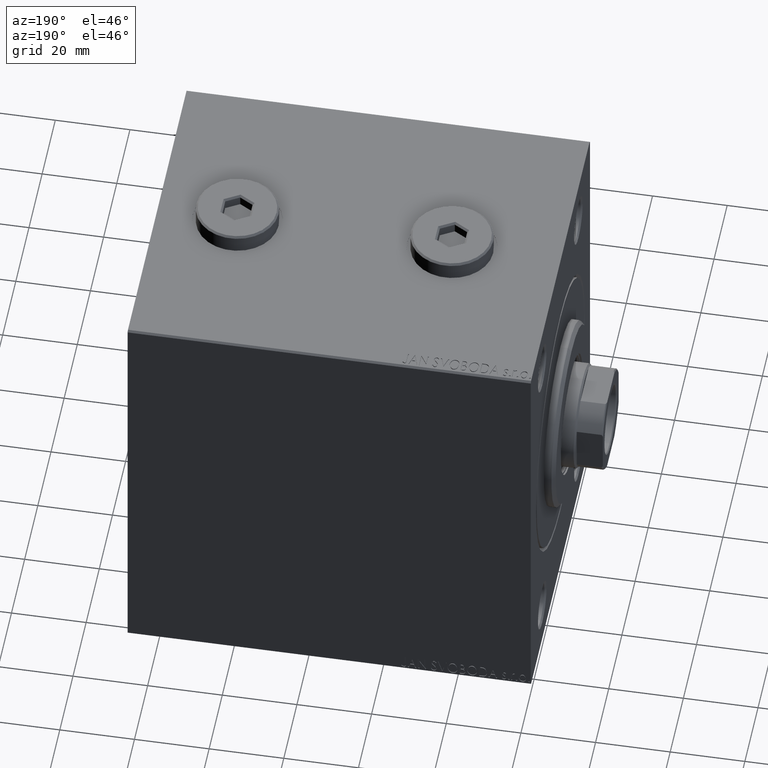
[diagram: clean part render]
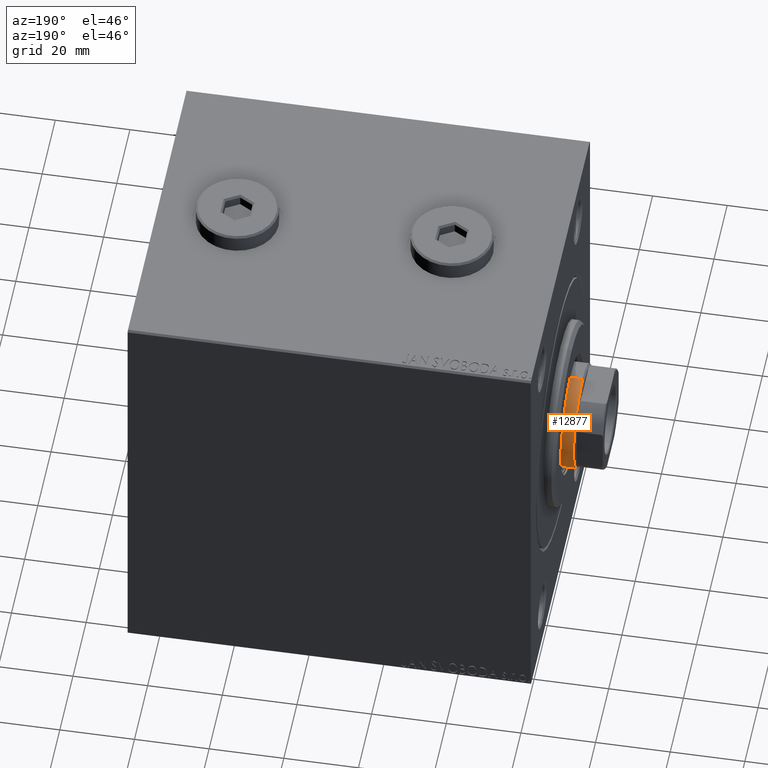
[diagram: same view with one face highlighted and labeled with its STEP entity id]
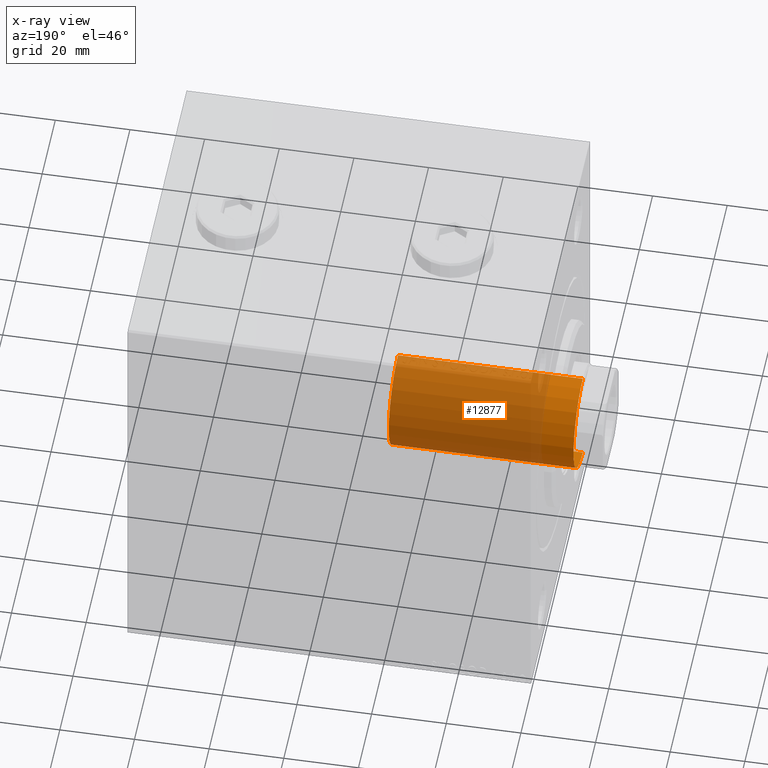
[diagram: x-ray of the same camera — body ghosted, the highlighted face saturated]
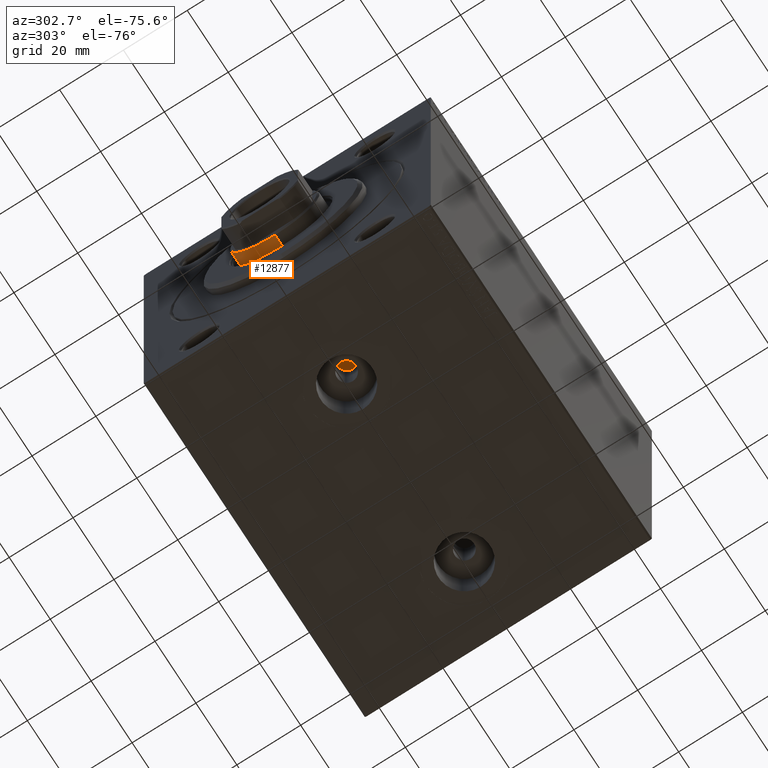
[diagram: same view with one face highlighted and labeled with its STEP entity id]
A machine part, auxiliary view. The second image highlights one B-rep face of the part: STEP entity #12877.
The next image is the same camera in x-ray: the body ghosted, the highlighted face saturated — about 82% of this face is hidden behind the body in this view.
A second angle (auxiliary view) of the same face is appended — the face is thin or edge-on in the first view.
In plain terms, the highlighted cylindrical surface (partial cylindrical patch) has radius 14 mm, axis along (1, -0, -0).
Its self-contained STEP definition (entity closure, byte-faithful):
#2231 = VERTEX_POINT ( 'NONE', #26704 ) ;
#3060 = CIRCLE ( 'NONE', #10448, 14.00000000000000178 ) ;
#3073 = VERTEX_POINT ( 'NONE', #42773 ) ;
#3843 = DIRECTION ( 'NONE',  ( 1.000000000000000000, 0.000000000000000000, 0.000000000000000000 ) ) ;
#5433 = VERTEX_POINT ( 'NONE', #30247 ) ;
#8405 = CYLINDRICAL_SURFACE ( 'NONE', #40586, 14.00000000000000178 ) ;
#10448 = AXIS2_PLACEMENT_3D ( 'NONE', #29759, #26522, #36464 ) ;
#11317 = AXIS2_PLACEMENT_3D ( 'NONE', #14707, #28783, #3843 ) ;
#12877 = ADVANCED_FACE ( 'NONE', ( #14016 ), #8405, .T. ) ;
#13064 = VERTEX_POINT ( 'NONE', #14591 ) ;
#13463 = DIRECTION ( 'NONE',  ( -0.000000000000000000, -0.000000000000000000, -1.000000000000000000 ) ) ;
#14016 = FACE_OUTER_BOUND ( 'NONE', #39631, .T. ) ;
#14591 = CARTESIAN_POINT ( 'NONE',  ( 14.00000000000000178, 1.714505518806294835E-15, 96.50000000000000000 ) ) ;
#14707 = CARTESIAN_POINT ( 'NONE',  ( 0.000000000000000000, 0.000000000000000000, 96.50000000000000000 ) ) ;
#15022 = CIRCLE ( 'NONE', #11317, 14.00000000000000178 ) ;
#16763 = ORIENTED_EDGE ( 'NONE', *, *, #26772, .T. ) ;
#19023 = DIRECTION ( 'NONE',  ( -0.000000000000000000, -0.000000000000000000, -1.000000000000000000 ) ) ;
#20281 = VECTOR ( 'NONE', #13463, 1000.000000000000000 ) ;
#21597 = ORIENTED_EDGE ( 'NONE', *, *, #41928, .T. ) ;
#23867 = CARTESIAN_POINT ( 'NONE',  ( 14.00000000000000178, 1.714505518806294835E-15, 97.00000000000000000 ) ) ;
#26522 = DIRECTION ( 'NONE',  ( 0.000000000000000000, 0.000000000000000000, 1.000000000000000000 ) ) ;
#26704 = CARTESIAN_POINT ( 'NONE',  ( -14.00000000000000178, 0.000000000000000000, 96.50000000000000000 ) ) ;
#26772 = EDGE_CURVE ( 'NONE', #2231, #13064, #15022, .T. ) ;
#27545 = ORIENTED_EDGE ( 'NONE', *, *, #38786, .F. ) ;
#28561 = CARTESIAN_POINT ( 'NONE',  ( 0.000000000000000000, 0.000000000000000000, 97.00000000000000000 ) ) ;
#28783 = DIRECTION ( 'NONE',  ( 0.000000000000000000, 0.000000000000000000, -1.000000000000000000 ) ) ;
#29513 = EDGE_CURVE ( 'NONE', #3073, #5433, #3060, .T. ) ;
#29759 = CARTESIAN_POINT ( 'NONE',  ( 0.000000000000000000, 0.000000000000000000, 47.00000000000000000 ) ) ;
#29800 = VECTOR ( 'NONE', #41447, 1000.000000000000000 ) ;
#30247 = CARTESIAN_POINT ( 'NONE',  ( -14.00000000000000178, 0.000000000000000000, 47.00000000000000000 ) ) ;
#34070 = LINE ( 'NONE', #40775, #29800 ) ;
#34480 = LINE ( 'NONE', #23867, #20281 ) ;
#35039 = DIRECTION ( 'NONE',  ( -1.000000000000000000, 0.000000000000000000, 0.000000000000000000 ) ) ;
#36464 = DIRECTION ( 'NONE',  ( 1.000000000000000000, 0.000000000000000000, 0.000000000000000000 ) ) ;
#38786 = EDGE_CURVE ( 'NONE', #2231, #5433, #34070, .T. ) ;
#39631 = EDGE_LOOP ( 'NONE', ( #16763, #21597, #42709, #27545 ) ) ;
#40586 = AXIS2_PLACEMENT_3D ( 'NONE', #28561, #19023, #35039 ) ;
#40775 = CARTESIAN_POINT ( 'NONE',  ( -14.00000000000000178, 0.000000000000000000, 97.00000000000000000 ) ) ;
#41447 = DIRECTION ( 'NONE',  ( -0.000000000000000000, -0.000000000000000000, -1.000000000000000000 ) ) ;
#41928 = EDGE_CURVE ( 'NONE', #13064, #3073, #34480, .T. ) ;
#42709 = ORIENTED_EDGE ( 'NONE', *, *, #29513, .T. ) ;
#42773 = CARTESIAN_POINT ( 'NONE',  ( 14.00000000000000178, 1.714505518806294835E-15, 47.00000000000000000 ) ) ;